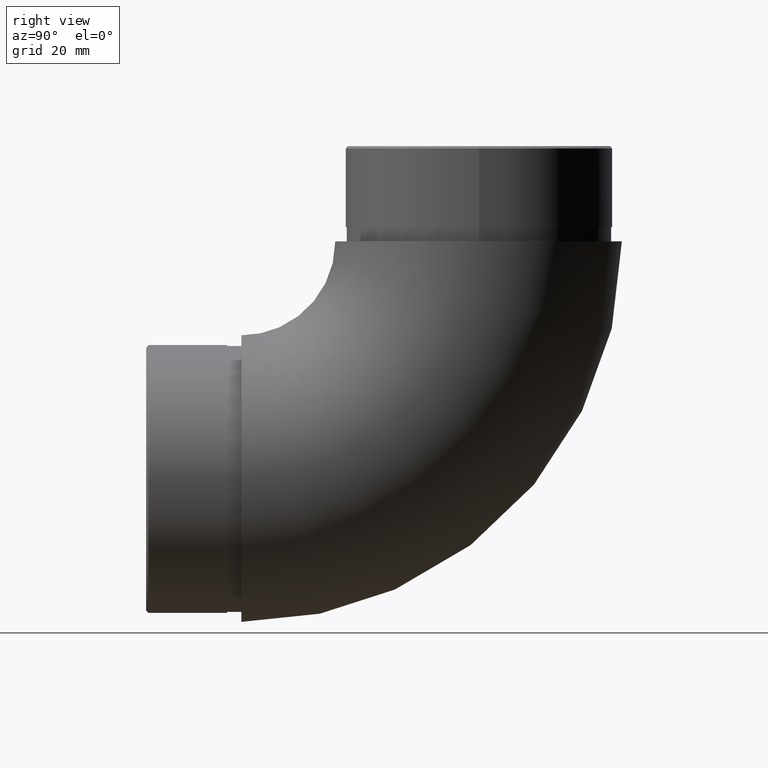
[diagram: clean part render]
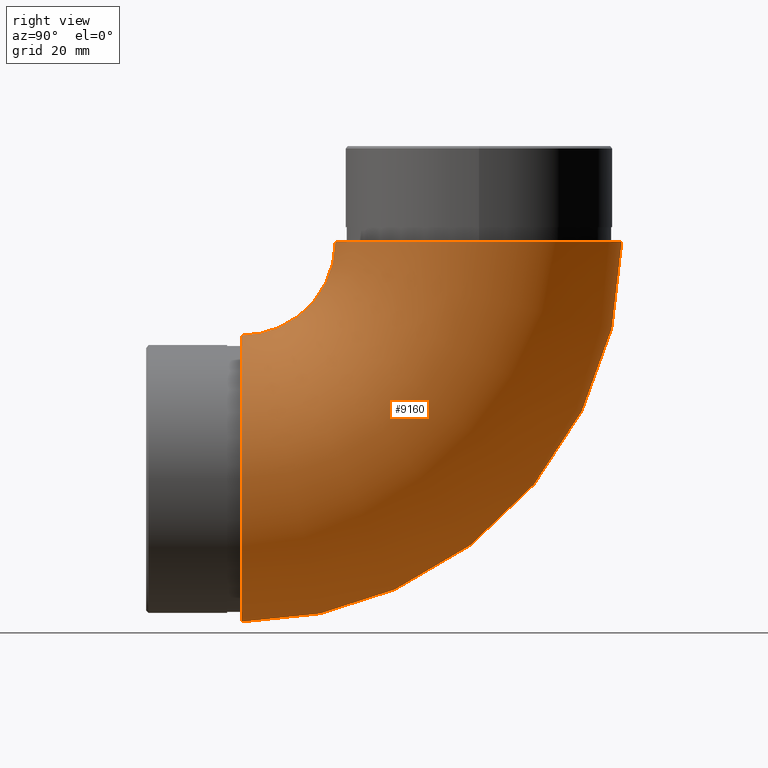
[diagram: same view with one face highlighted and labeled with its STEP entity id]
A machine part, right view. The second image highlights one B-rep face of the part: STEP entity #9160.
In plain terms, the highlighted toroidal blend (fillet) surface has major radius 49.85 mm and minor (blend) radius 30.15 mm.
Its self-contained STEP definition (entity closure, byte-faithful):
#77 = CARTESIAN_POINT ( 'NONE',  ( 0.0000000000000000000, 0.0000000000000000000, 30.14999999999999900 ) ) ;
#845 = FACE_OUTER_BOUND ( 'NONE', #5230, .T. ) ;
#1142 = FACE_OUTER_BOUND ( 'NONE', #7103, .T. ) ;
#2098 = DIRECTION ( 'NONE',  ( 0.0000000000000000000, 6.123233995736766000E-017, 1.000000000000000000 ) ) ;
#2489 = EDGE_CURVE ( 'NONE', #4837, #4837, #2985, .T. ) ;
#2698 = AXIS2_PLACEMENT_3D ( 'NONE', #4803, #8621, #3146 ) ;
#2985 = CIRCLE ( 'NONE', #11077, 30.14999999999999900 ) ;
#3146 = DIRECTION ( 'NONE',  ( 0.0000000000000000000, 0.0000000000000000000, 1.000000000000000000 ) ) ;
#4803 = CARTESIAN_POINT ( 'NONE',  ( 0.0000000000000000000, -6.938893903907228400E-015, 80.00000000000000000 ) ) ;
#4837 = VERTEX_POINT ( 'NONE', #6582 ) ;
#4869 = DIRECTION ( 'NONE',  ( 0.0000000000000000000, 0.0000000000000000000, 1.000000000000000000 ) ) ;
#5230 = EDGE_LOOP ( 'NONE', ( #7110 ) ) ;
#5240 = EDGE_CURVE ( 'NONE', #6315, #6315, #8417, .T. ) ;
#5627 = AXIS2_PLACEMENT_3D ( 'NONE', #11575, #2098, #5915 ) ;
#5915 = DIRECTION ( 'NONE',  ( 0.0000000000000000000, -1.000000000000000000, 0.0000000000000000000 ) ) ;
#6315 = VERTEX_POINT ( 'NONE', #12166 ) ;
#6582 = CARTESIAN_POINT ( 'NONE',  ( 0.0000000000000000000, 0.0000000000000000000, 60.29999999999999700 ) ) ;
#7103 = EDGE_LOOP ( 'NONE', ( #8338 ) ) ;
#7110 = ORIENTED_EDGE ( 'NONE', *, *, #2489, .T. ) ;
#7383 = TOROIDAL_SURFACE ( 'NONE', #2698, 49.85000000000000100, 30.14999999999999900 ) ;
#8338 = ORIENTED_EDGE ( 'NONE', *, *, #5240, .F. ) ;
#8417 = CIRCLE ( 'NONE', #5627, 30.14999999999999900 ) ;
#8621 = DIRECTION ( 'NONE',  ( -1.000000000000000000, -0.0000000000000000000, -0.0000000000000000000 ) ) ;
#9160 = ADVANCED_FACE ( 'NONE', ( #1142, #845 ), #7383, .T. ) ;
#10530 = DIRECTION ( 'NONE',  ( 0.0000000000000000000, 1.000000000000000000, 0.0000000000000000000 ) ) ;
#11077 = AXIS2_PLACEMENT_3D ( 'NONE', #77, #10530, #4869 ) ;
#11575 = CARTESIAN_POINT ( 'NONE',  ( 0.0000000000000000000, 49.84999999999999400, 80.00000000000000000 ) ) ;
#12166 = CARTESIAN_POINT ( 'NONE',  ( 0.0000000000000000000, 19.69999999999999200, 80.00000000000000000 ) ) ;